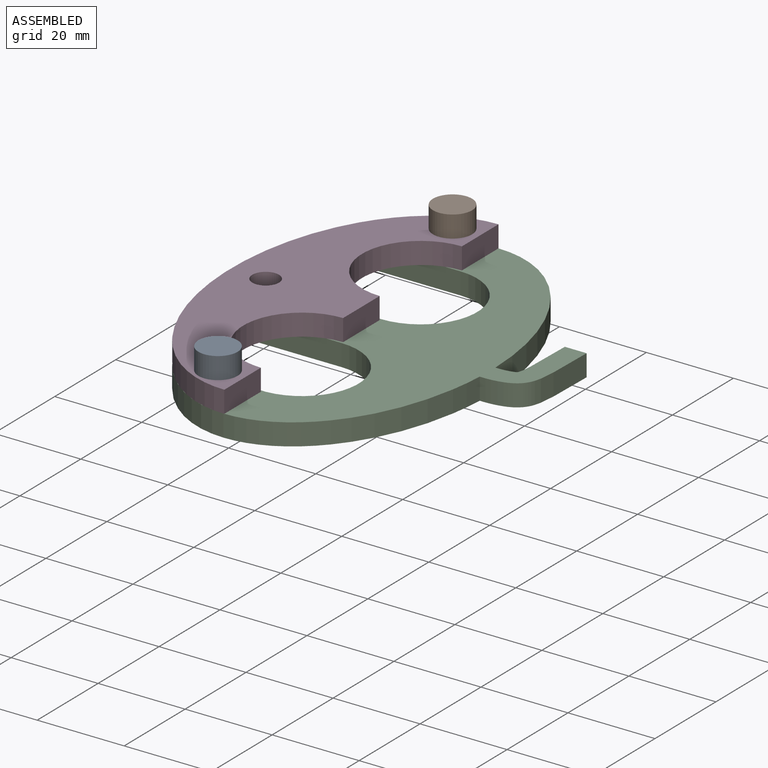
[diagram: assembled view]
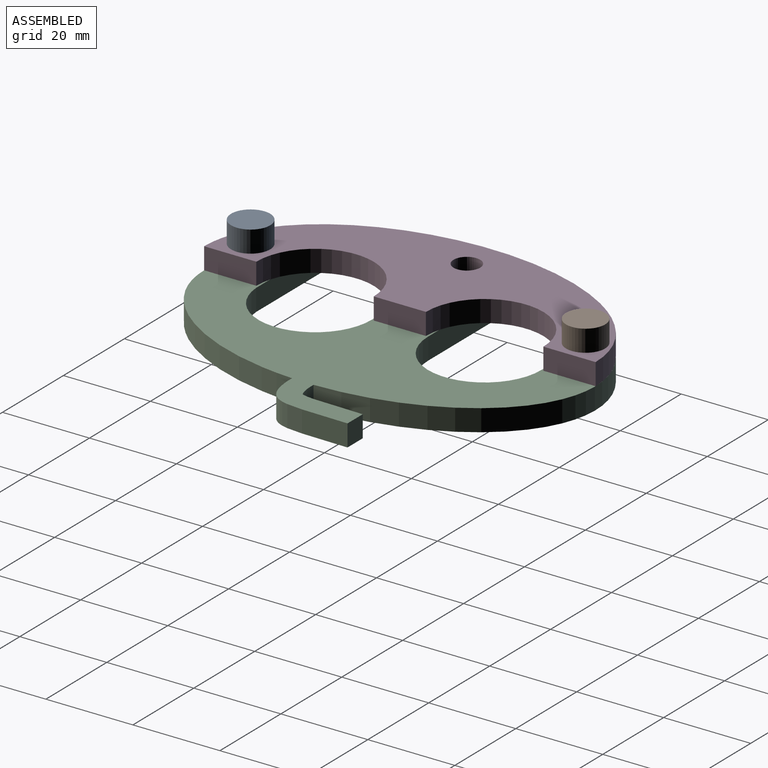
[diagram: assembled view, second angle]
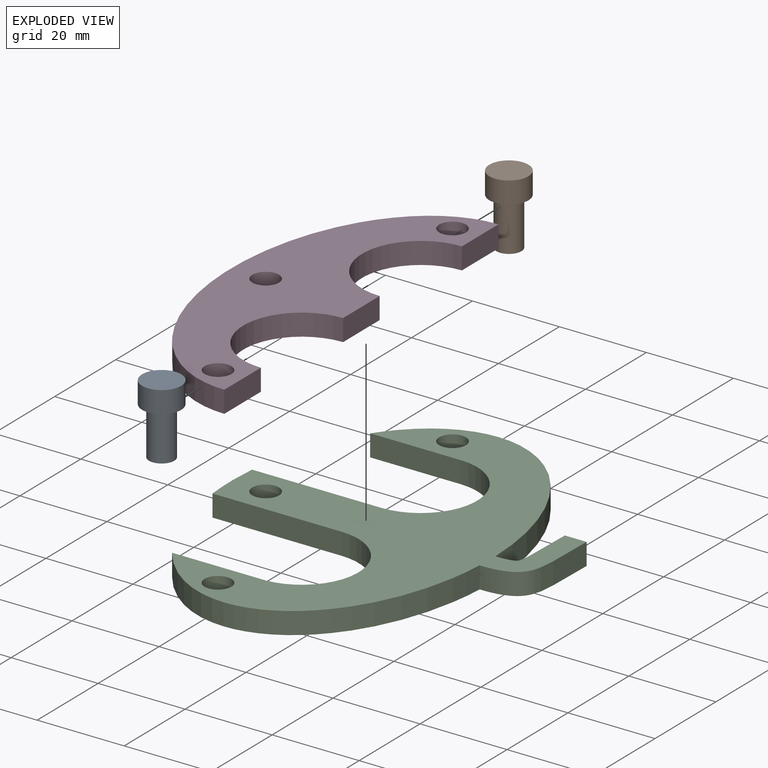
[diagram: exploded view]
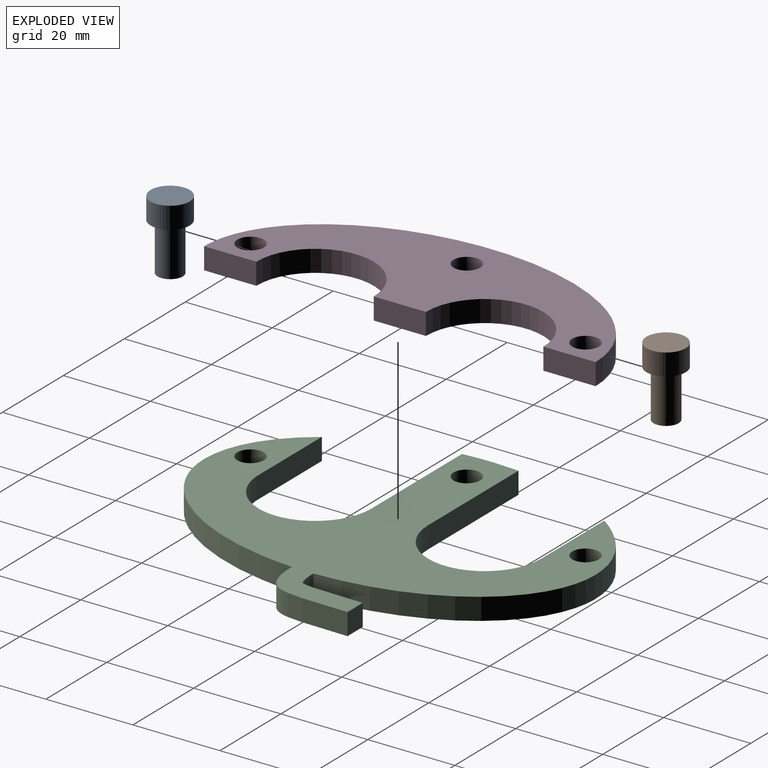
[diagram: exploded view, second angle]
ASSEMBLY  parts=4 mates=3
PART A: 5 faces, bbox 9x9x16 mm
  f0: cylinder r=4.5mm len=9mm, axis (0,0,-1), area 141.4mm2, adj f1,f2
  f1: plane 9x9mm, normal (0,0,1), area 37.2mm2, adj f0,f3
  f2: plane 9x9mm, normal (0,0,-1), area 63.6mm2, adj f0
  f3: cylinder r=2.9mm len=11mm, axis (0,0,-1), area 200.4mm2, adj f1,f4
  f4: plane 5.8x5.8mm, normal (0,0,1), area 26.4mm2, adj f3
PART B: 5 faces, bbox 9x9x16 mm
  f0: cylinder r=4.5mm len=9mm, axis (0,0,-1), area 141.4mm2, adj f1,f2
  f1: plane 9x9mm, normal (0,0,1), area 37.2mm2, adj f0,f3
  f2: plane 9x9mm, normal (0,0,-1), area 63.6mm2, adj f0
  f3: cylinder r=2.9mm len=11mm, axis (0,0,-1), area 200.4mm2, adj f1,f4
  f4: plane 5.8x5.8mm, normal (0,0,1), area 26.4mm2, adj f3
PART C: 17 faces, bbox 71.4x91x6 mm
  f0: extruded ~50.74x43.82mm, area 417.7mm2, adj f2,f3,f6,f14
  f1: extruded ~50.66x41.16mm, area 404.4mm2, adj f2,f3,f11,f15
  f2: plane 91.04x71.43mm, normal (0,0,1), area 2379.5mm2, adj f0,f1,f4,f5,f6,f7,f8,f9
  f3: plane 91.04x71.43mm, normal (0,0,-1), area 2379.4mm2, adj f0,f1,f4,f5,f6,f7,f8,f9
  f4: extruded ~13x5mm, area 65.1mm2, adj f2,f3,f7,f13
  f5: cylinder r=13mm len=26mm, axis (0,0,1), area 204.2mm2, adj f2,f3,f6,f7
  f6: plane 20.75x5mm, normal (0,-1,0), area 103.7mm2, adj f0,f2,f3,f5
  f7: plane 29.69x5mm, normal (0,1,0), area 148.4mm2, adj f2,f3,f4,f5
  f8: cylinder r=3.08mm len=6.15mm, axis (0,0,1), area 96.6mm2, adj f2,f3
  f9: cylinder r=3.08mm len=6.15mm, axis (0,0,1), area 96.6mm2, adj f2,f3
  f10: cylinder r=3.08mm len=6.15mm, axis (0,0,1), area 96.6mm2, adj f2,f3
  f11: plane 21.56x5mm, normal (0,1,0), area 107.8mm2, adj f1,f2,f3,f12
  f12: cylinder r=13mm len=25.98mm, axis (0,0,1), area 200.2mm2, adj f2,f3,f11,f13
  f13: plane 29.69x5mm, normal (0,-1,0), area 148.4mm2, adj f2,f3,f4,f12
  f14: bspline ~15.13x6.69mm, area 95.7mm2, adj f0,f2,f3,f16
  f15: bspline ~20.13x12.54mm, area 135.4mm2, adj f1,f2,f3,f16
  f16: plane 5x5mm, normal (0,1,0), area 25mm2, adj f2,f3,f14,f15
PART D: 11 faces, bbox 30x90x5 mm
  f0: plane 12x5mm, normal (1,0,0), area 60mm2, adj f3,f4,f5,f10
  f1: plane 12x5mm, normal (1,0,0), area 60mm2, adj f4,f5,f6,f10
  f2: plane 12x5mm, normal (1,0,0), area 60mm2, adj f3,f4,f5,f6
  f3: extruded ~90x30mm, area 595mm2, adj f0,f2,f4,f5
  f4: plane 90x30mm, normal (0,0,1), area 1458.9mm2, adj f0,f1,f2,f3,f6,f7,f8,f9
  f5: plane 90x30mm, normal (0,0,-1), area 1458.9mm2, adj f0,f1,f2,f3,f6,f7,f8,f9
  f6: cylinder r=13.5mm len=27mm, axis (0,0,1), area 212.1mm2, adj f1,f2,f4,f5
  f7: cylinder r=3.08mm len=6.15mm, axis (0,0,1), area 96.6mm2, adj f4,f5
  f8: cylinder r=3.08mm len=6.15mm, axis (0,0,1), area 96.6mm2, adj f4,f5
  f9: cylinder r=3.08mm len=6.15mm, axis (0,0,1), area 96.6mm2, adj f4,f5
  f10: cylinder r=13.5mm len=27mm, axis (0,0,1), area 212.1mm2, adj f0,f1,f4,f5
PLACE A rot(axis=(0,1,0),180deg) t=(-39.89,25.05,14.46)mm
PLACE B rot(axis=(0,1,0),180deg) t=(-54.65,94.07,14.46)mm
PLACE C t=(-12.91,16.32,-0.54)mm
PLACE D t=(50.26,16.32,4.46)mm
MATE fastened B.f0 <-> D.f9  axis (0,0,1) through (-18.91,54.82,9.46)mm
MATE fastened D.f9 <-> C.f10  axis (0,0,-1) through (-18.91,54.82,4.46)mm
MATE fastened A.f0 <-> D.f8  axis (0,0,1) through (-18.91,-22.18,9.46)mm
